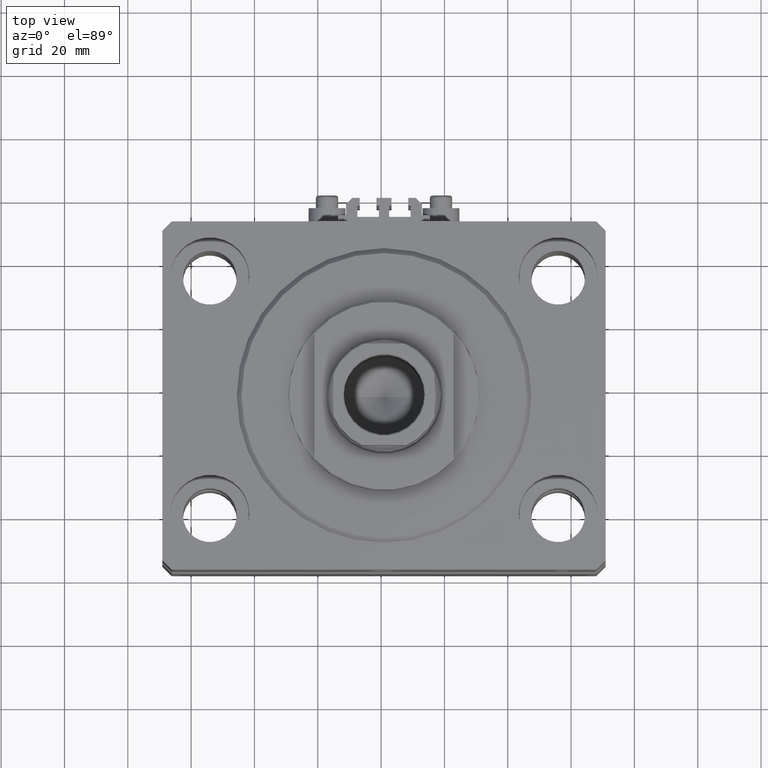
[diagram: clean part render]
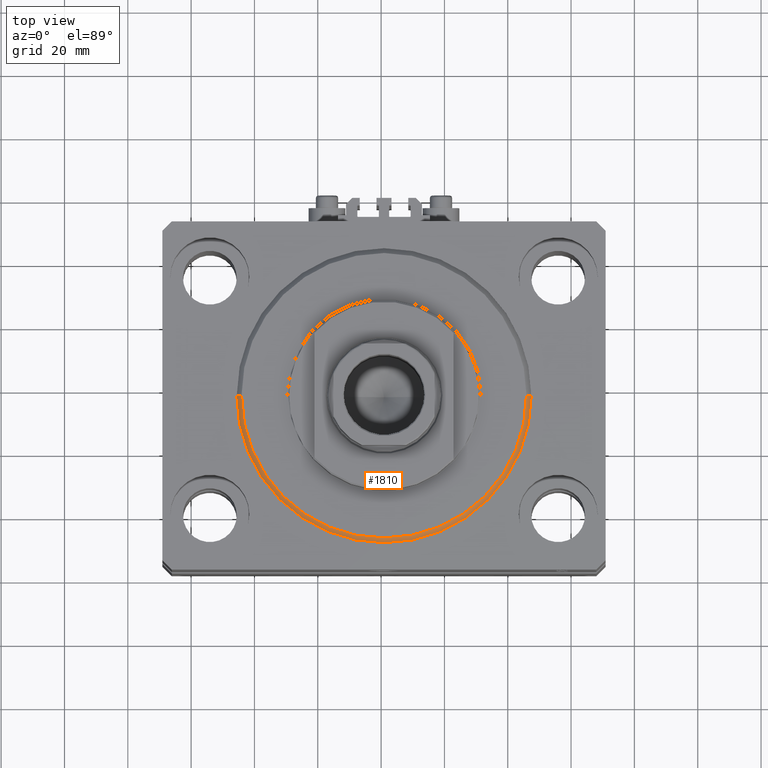
[diagram: same view with one face highlighted and labeled with its STEP entity id]
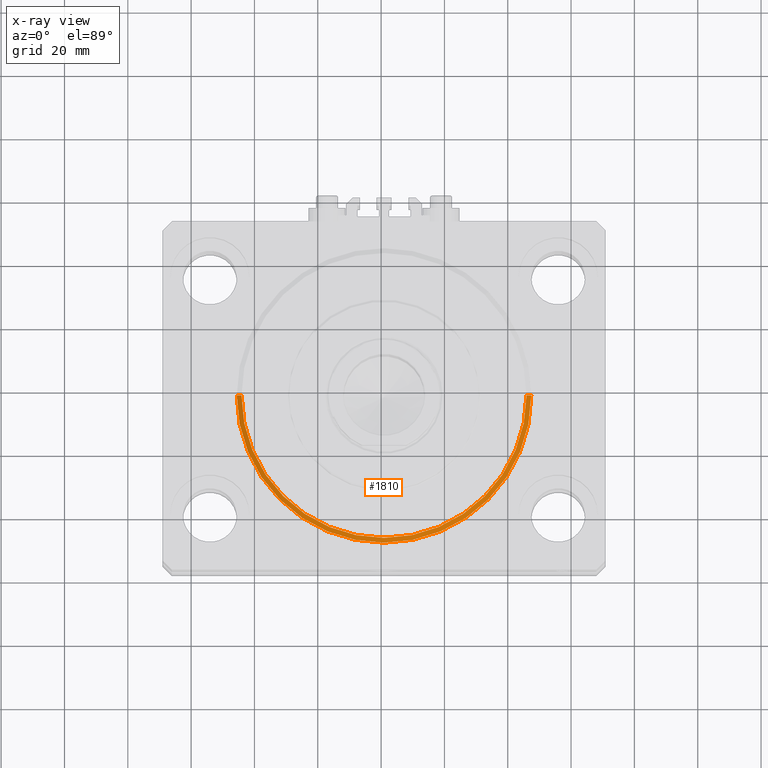
[diagram: x-ray of the same camera — body ghosted, the highlighted face saturated]
A machine part, top view. The second image highlights one B-rep face of the part: STEP entity #1810.
The next image is the same camera in x-ray: the body ghosted, the highlighted face saturated — about 0% of this face is hidden behind the body in this view.
In plain terms, the highlighted conical surface has half-angle 45 deg.
Its self-contained STEP definition (entity closure, byte-faithful):
#1031 = EDGE_LOOP ( 'NONE', ( #19889, #4912, #39601, #48184 ) ) ;
#1765 = DIRECTION ( 'NONE',  ( -0.000000000000000000, -0.000000000000000000, 1.000000000000000000 ) ) ;
#1810 = ADVANCED_FACE ( 'NONE', ( #24232 ), #22152, .T. ) ;
#2218 = DIRECTION ( 'NONE',  ( 0.7071067811865507924, 0.000000000000000000, 0.7071067811865441310 ) ) ;
#3162 = CARTESIAN_POINT ( 'NONE',  ( 0.000000000000000000, 0.000000000000000000, 0.000000000000000000 ) ) ;
#3279 = CARTESIAN_POINT ( 'NONE',  ( 45.00000000000001421, 0.000000000000000000, 0.000000000000000000 ) ) ;
#4912 = ORIENTED_EDGE ( 'NONE', *, *, #31424, .F. ) ;
#5980 = DIRECTION ( 'NONE',  ( -0.000000000000000000, -0.000000000000000000, 1.000000000000000000 ) ) ;
#6196 = CIRCLE ( 'NONE', #18807, 45.00000000000001421 ) ;
#6404 = DIRECTION ( 'NONE',  ( -0.7071067811865507924, 8.659560562354972301E-17, 0.7071067811865441310 ) ) ;
#7833 = DIRECTION ( 'NONE',  ( 1.000000000000000000, 0.000000000000000000, 0.000000000000000000 ) ) ;
#11188 = VECTOR ( 'NONE', #2218, 1000.000000000000114 ) ;
#15290 = VERTEX_POINT ( 'NONE', #3279 ) ;
#16582 = CARTESIAN_POINT ( 'NONE',  ( 0.000000000000000000, 0.000000000000000000, 1.499999999999973577 ) ) ;
#16837 = DIRECTION ( 'NONE',  ( 1.000000000000000000, 0.000000000000000000, 0.000000000000000000 ) ) ;
#17057 = CARTESIAN_POINT ( 'NONE',  ( 46.50000000000000000, 5.694607616035192278E-15, 1.499999999999973577 ) ) ;
#18807 = AXIS2_PLACEMENT_3D ( 'NONE', #3162, #37491, #7833 ) ;
#19138 = AXIS2_PLACEMENT_3D ( 'NONE', #16582, #5980, #16837 ) ;
#19449 = CARTESIAN_POINT ( 'NONE',  ( -46.50000000000000000, 0.000000000000000000, 1.499999999999973577 ) ) ;
#19889 = ORIENTED_EDGE ( 'NONE', *, *, #42934, .F. ) ;
#20463 = CARTESIAN_POINT ( 'NONE',  ( 46.50000000000000000, 0.000000000000000000, 1.499999999999973577 ) ) ;
#21245 = VERTEX_POINT ( 'NONE', #17057 ) ;
#22152 = CONICAL_SURFACE ( 'NONE', #38709, 46.50000000000000000, 0.7853981633974529419 ) ;
#24232 = FACE_OUTER_BOUND ( 'NONE', #1031, .T. ) ;
#28329 = CARTESIAN_POINT ( 'NONE',  ( -45.00000000000001421, 5.602759106099141706E-15, 0.000000000000000000 ) ) ;
#28903 = LINE ( 'NONE', #39777, #35727 ) ;
#31424 = EDGE_CURVE ( 'NONE', #15290, #46735, #6196, .T. ) ;
#33801 = VERTEX_POINT ( 'NONE', #19449 ) ;
#35385 = EDGE_CURVE ( 'NONE', #15290, #21245, #36052, .T. ) ;
#35727 = VECTOR ( 'NONE', #6404, 1000.000000000000114 ) ;
#36052 = LINE ( 'NONE', #20463, #11188 ) ;
#37491 = DIRECTION ( 'NONE',  ( -0.000000000000000000, -0.000000000000000000, -1.000000000000000000 ) ) ;
#38709 = AXIS2_PLACEMENT_3D ( 'NONE', #46197, #1765, #46930 ) ;
#39601 = ORIENTED_EDGE ( 'NONE', *, *, #35385, .T. ) ;
#39777 = CARTESIAN_POINT ( 'NONE',  ( -46.50000000000000000, 5.694607616035192278E-15, 1.499999999999973577 ) ) ;
#40019 = EDGE_CURVE ( 'NONE', #33801, #21245, #40445, .T. ) ;
#40445 = CIRCLE ( 'NONE', #19138, 46.50000000000000000 ) ;
#42934 = EDGE_CURVE ( 'NONE', #46735, #33801, #28903, .T. ) ;
#46197 = CARTESIAN_POINT ( 'NONE',  ( 0.000000000000000000, 0.000000000000000000, 1.499999999999973577 ) ) ;
#46735 = VERTEX_POINT ( 'NONE', #28329 ) ;
#46930 = DIRECTION ( 'NONE',  ( 1.000000000000000000, 0.000000000000000000, 0.000000000000000000 ) ) ;
#48184 = ORIENTED_EDGE ( 'NONE', *, *, #40019, .F. ) ;